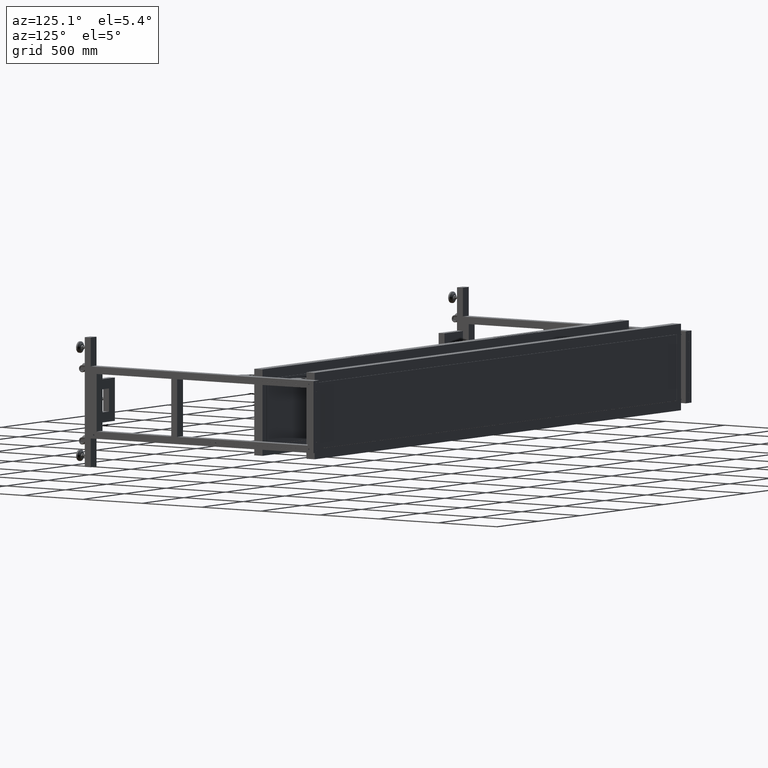
[diagram: clean part render]
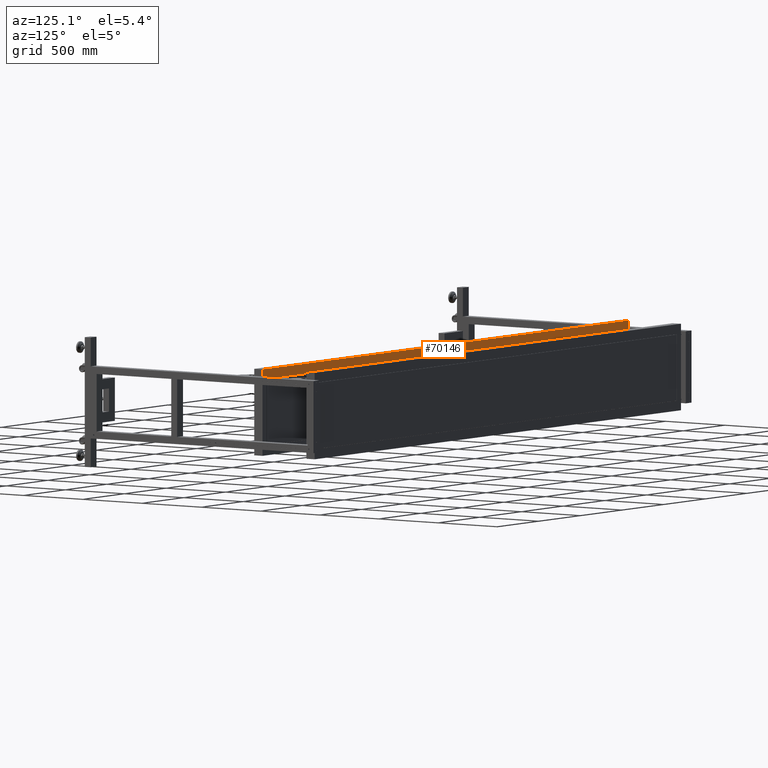
[diagram: same view with one face highlighted and labeled with its STEP entity id]
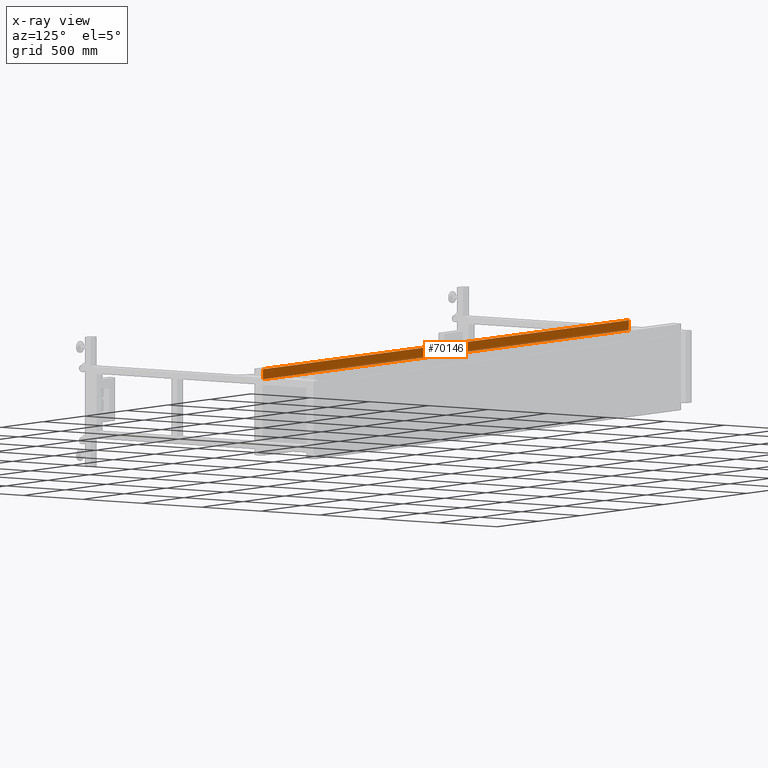
[diagram: x-ray of the same camera — body ghosted, the highlighted face saturated]
A machine part, auxiliary view. The second image highlights one B-rep face of the part: STEP entity #70146.
The next image is the same camera in x-ray: the body ghosted, the highlighted face saturated — about 12% of this face is hidden behind the body in this view.
In plain terms, the highlighted planar face has unit normal (-0, -1, -0).
Its self-contained STEP definition (entity closure, byte-faithful):
#2749 = EDGE_CURVE ( 'NONE', #4048, #40761, #68743, .T. ) ;
#4048 = VERTEX_POINT ( 'NONE', #30584 ) ;
#5731 = DIRECTION ( 'NONE',  ( -1.000000000000000000, 1.092267369640097868E-16, 0.000000000000000000 ) ) ;
#6817 = VERTEX_POINT ( 'NONE', #11395 ) ;
#11395 = CARTESIAN_POINT ( 'NONE',  ( 3129.827512562816537, 556.9410804020117212, 230.0000000000000853 ) ) ;
#16383 = PLANE ( 'NONE',  #68866 ) ;
#17991 = CARTESIAN_POINT ( 'NONE',  ( 2429.827512562815627, 556.9410804020114938, 230.0000000000000853 ) ) ;
#18400 = DIRECTION ( 'NONE',  ( 1.035296940874237648E-30, -2.999999999999999839E-15, 1.000000000000000000 ) ) ;
#22843 = VECTOR ( 'NONE', #66347, 1000.000000000000000 ) ;
#25023 = VECTOR ( 'NONE', #69832, 1000.000000000000000 ) ;
#26675 = VECTOR ( 'NONE', #5731, 1000.000000000000000 ) ;
#27551 = VERTEX_POINT ( 'NONE', #29634 ) ;
#29634 = CARTESIAN_POINT ( 'NONE',  ( -1266.172487437185964, 556.9410804020109254, 230.0000000000000853 ) ) ;
#30584 = CARTESIAN_POINT ( 'NONE',  ( 3129.827512562816537, 556.9410804020114938, 300.0000000000001137 ) ) ;
#34737 = EDGE_LOOP ( 'NONE', ( #55614, #51713, #65674, #47360 ) ) ;
#35599 = DIRECTION ( 'NONE',  ( -1.092267369640097868E-16, -1.000000000000000000, -2.999999999999999839E-15 ) ) ;
#37638 = CARTESIAN_POINT ( 'NONE',  ( 3129.827512562816537, 556.9410804020117212, 230.0000000000000853 ) ) ;
#37654 = CARTESIAN_POINT ( 'NONE',  ( 2429.827512562815627, 556.9410804020112664, 300.0000000000001137 ) ) ;
#40761 = VERTEX_POINT ( 'NONE', #49687 ) ;
#41391 = CARTESIAN_POINT ( 'NONE',  ( -1266.172487437185964, 556.9410804020109254, 230.0000000000000853 ) ) ;
#42153 = DIRECTION ( 'NONE',  ( -3.276802108920293614E-31, -2.999999999999999839E-15, 1.000000000000000000 ) ) ;
#47360 = ORIENTED_EDGE ( 'NONE', *, *, #68089, .T. ) ;
#48338 = LINE ( 'NONE', #41391, #22843 ) ;
#49165 = VECTOR ( 'NONE', #18400, 1000.000000000000000 ) ;
#49687 = CARTESIAN_POINT ( 'NONE',  ( -1266.172487437185964, 556.9410804020106980, 300.0000000000001137 ) ) ;
#51713 = ORIENTED_EDGE ( 'NONE', *, *, #79542, .F. ) ;
#51838 = CARTESIAN_POINT ( 'NONE',  ( 2429.827512562815627, 556.9410804020114938, 230.0000000000000853 ) ) ;
#55614 = ORIENTED_EDGE ( 'NONE', *, *, #2749, .F. ) ;
#61196 = EDGE_CURVE ( 'NONE', #6817, #27551, #64109, .T. ) ;
#64109 = LINE ( 'NONE', #51838, #25023 ) ;
#65674 = ORIENTED_EDGE ( 'NONE', *, *, #61196, .T. ) ;
#66347 = DIRECTION ( 'NONE',  ( 0.000000000000000000, -2.999999999999999839E-15, 1.000000000000000000 ) ) ;
#68089 = EDGE_CURVE ( 'NONE', #27551, #40761, #48338, .T. ) ;
#68743 = LINE ( 'NONE', #37654, #26675 ) ;
#68866 = AXIS2_PLACEMENT_3D ( 'NONE', #17991, #35599, #42153 ) ;
#69832 = DIRECTION ( 'NONE',  ( -1.000000000000000000, 1.092267369640097868E-16, 0.000000000000000000 ) ) ;
#70146 = ADVANCED_FACE ( 'NONE', ( #78981 ), #16383, .F. ) ;
#73641 = LINE ( 'NONE', #37638, #49165 ) ;
#78981 = FACE_OUTER_BOUND ( 'NONE', #34737, .T. ) ;
#79542 = EDGE_CURVE ( 'NONE', #6817, #4048, #73641, .T. ) ;